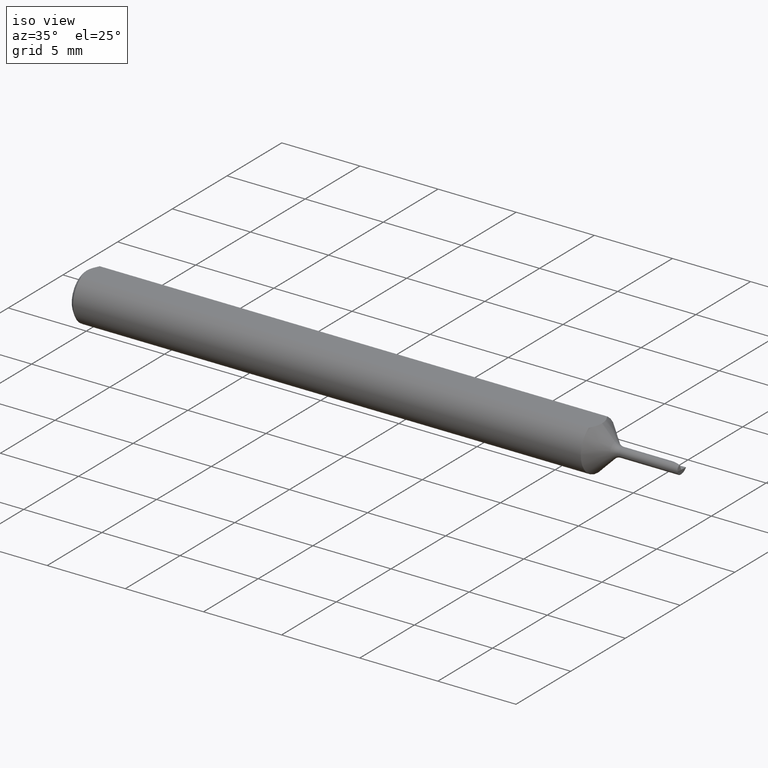
[diagram: clean part render]
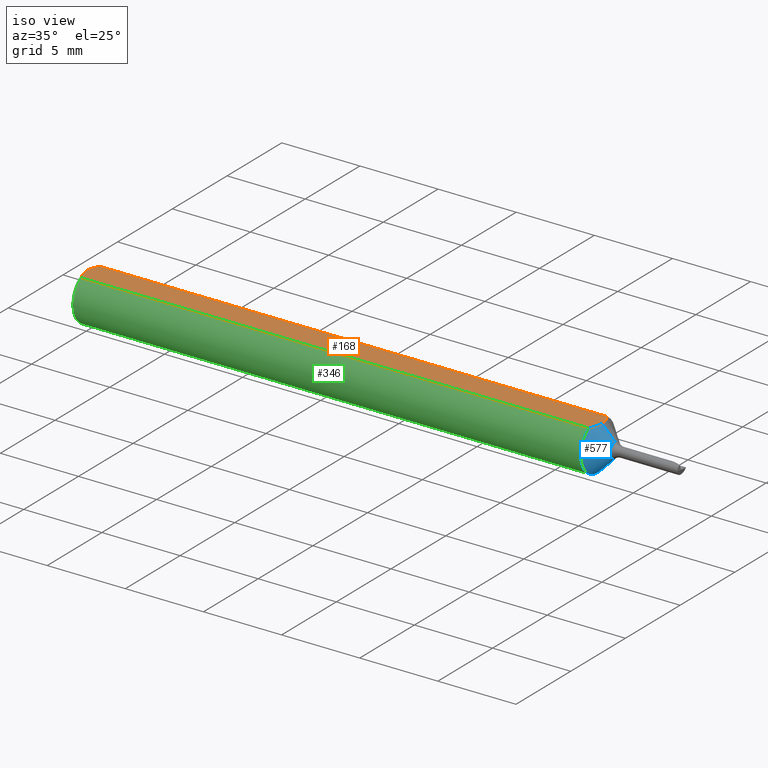
[diagram: same view with three faces highlighted in distinct colors, each labeled with its STEP entity id]
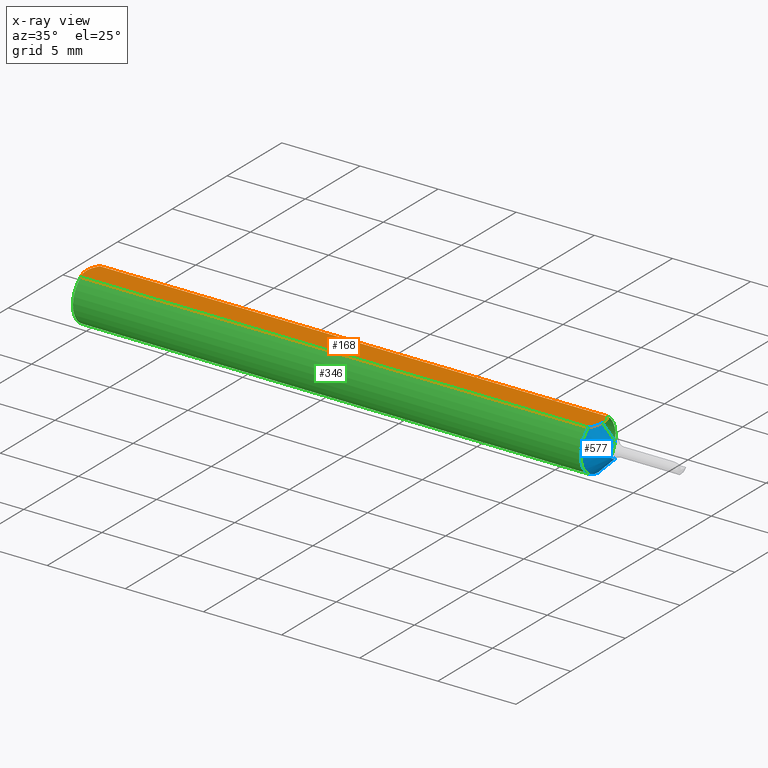
[diagram: x-ray of the same camera — body ghosted, the three highlighted faces saturated]
A machine part, iso view with three faces highlighted in distinct colors.
The next image is the same camera in x-ray (body ghosted, the three faces saturated) — at least one of them is partly hidden behind the body in this view.
Their STEP definitions:

[orange] entity #168 — the highlighted planar face has unit normal (0, 0, -1).
#11 = CARTESIAN_POINT ( 'NONE',  ( 1.294734733031429830, -0.02321402113692512537, 0.05235000000000001458 ) ) ;
#12 = CARTESIAN_POINT ( 'NONE',  ( 1.289400000000000102, -0.03386738844375218604, 0.05235000000000001458 ) ) ;
#17 = CARTESIAN_POINT ( 'NONE',  ( 1.298328875033864405, 0.01191462272770363318, 0.05235000000000001458 ) ) ;
#25 = ORIENTED_EDGE ( 'NONE', *, *, #317, .F. ) ;
#31 = DIRECTION ( 'NONE',  ( -1.000000000000000000, -0.000000000000000000, -0.000000000000000000 ) ) ;
#65 = CARTESIAN_POINT ( 'NONE',  ( 0.000000000000000000, 0.03386738844375218604, 0.05235000000000001458 ) ) ;
#68 = CARTESIAN_POINT ( 'NONE',  ( 1.299400000000000110, -1.923771709464471706E-20, 0.05235000000000001458 ) ) ;
#83 = VECTOR ( 'NONE', #280, 39.37007874015748143 ) ;
#86 = CARTESIAN_POINT ( 'NONE',  ( 0.000000000000000000, -0.03386738844375218604, 0.05235000000000001458 ) ) ;
#97 = EDGE_CURVE ( 'NONE', #275, #630, #661, .T. ) ;
#100 = ORIENTED_EDGE ( 'NONE', *, *, #97, .T. ) ;
#112 = CARTESIAN_POINT ( 'NONE',  ( 1.500000000000000444, 0.06235000000000000264, 0.05235000000000001458 ) ) ;
#118 = EDGE_CURVE ( 'NONE', #427, #275, #470, .T. ) ;
#119 = CARTESIAN_POINT ( 'NONE',  ( 0.000000000000000000, 0.000000000000000000, 0.05235000000000033377 ) ) ;
#131 = LINE ( 'NONE', #65, #83 ) ;
#147 = CARTESIAN_POINT ( 'NONE',  ( 1.299400000000000110, -1.923771709464471706E-20, 0.05235000000000001458 ) ) ;
#152 = CARTESIAN_POINT ( 'NONE',  ( 0.004679365186825696840, -0.02325953974091124130, 0.05235000000000001458 ) ) ;
#159 = CARTESIAN_POINT ( 'NONE',  ( 0.000000000000000000, 0.000000000000000000, 0.05235000000000033377 ) ) ;
#168 = ADVANCED_FACE ( 'NONE', ( #705 ), #543, .F. ) ;
#180 = CARTESIAN_POINT ( 'NONE',  ( 1.289400000000000102, 0.03386738844375218604, 0.05235000000000001458 ) ) ;
#191 = CARTESIAN_POINT ( 'NONE',  ( 0.01000000000000839627, -0.03386738844395137393, 0.05235000000000001458 ) ) ;
#199 = LINE ( 'NONE', #86, #607 ) ;
#211 = ORIENTED_EDGE ( 'NONE', *, *, #118, .T. ) ;
#231 = CARTESIAN_POINT ( 'NONE',  ( 1.298328236633304877, -0.01191784003313683775, 0.05235000000000002152 ) ) ;
#236 = CARTESIAN_POINT ( 'NONE',  ( 1.299399999999999888, 0.005921331895061767055, 0.05235000000000002152 ) ) ;
#254 = CARTESIAN_POINT ( 'NONE',  ( -1.070637973615595209E-15, -0.005965286321711172658, 0.05235000000000002152 ) ) ;
#268 = B_SPLINE_CURVE_WITH_KNOTS ( 'NONE', 3,
 ( #68, #276, #231, #11, #603, #660 ),
 .UNSPECIFIED., .F., .F.,
 ( 4, 2, 4 ),
 ( 0.003036113165764197080, 0.003485293315685289960, 0.003934473465606382406 ),
 .UNSPECIFIED. ) ;
#274 = CARTESIAN_POINT ( 'NONE',  ( 0.001063697276021360232, 0.01189177144351692694, 0.05235000000000001458 ) ) ;
#275 = VERTEX_POINT ( 'NONE', #119 ) ;
#276 = CARTESIAN_POINT ( 'NONE',  ( 1.299399999999999444, -0.005923251185922118883, 0.05235000000000002152 ) ) ;
#280 = DIRECTION ( 'NONE',  ( 1.000000000000000000, 0.000000000000000000, 0.000000000000000000 ) ) ;
#317 = EDGE_CURVE ( 'NONE', #427, #484, #131, .T. ) ;
#335 = CARTESIAN_POINT ( 'NONE',  ( 1.289400000000000102, 0.03386738844375218604, 0.05235000000000001458 ) ) ;
#348 = VERTEX_POINT ( 'NONE', #12 ) ;
#368 = EDGE_CURVE ( 'NONE', #484, #566, #594, .T. ) ;
#381 = ORIENTED_EDGE ( 'NONE', *, *, #368, .F. ) ;
#399 = CARTESIAN_POINT ( 'NONE',  ( 0.009999999999999882247, 0.03386738844375217217, 0.05235000000000001458 ) ) ;
#404 = CARTESIAN_POINT ( 'NONE',  ( 1.294736758639427832, 0.02320886323228526019, 0.05235000000000002152 ) ) ;
#419 = CARTESIAN_POINT ( 'NONE',  ( 0.001055043921644571291, -0.01186408073217194367, 0.05235000000000002152 ) ) ;
#422 = EDGE_CURVE ( 'NONE', #566, #348, #268, .T. ) ;
#427 = VERTEX_POINT ( 'NONE', #399 ) ;
#433 = AXIS2_PLACEMENT_3D ( 'NONE', #112, #537, #489 ) ;
#435 = CARTESIAN_POINT ( 'NONE',  ( 0.009999999999999882247, 0.03386738844375217217, 0.05235000000000001458 ) ) ;
#442 = CARTESIAN_POINT ( 'NONE',  ( 0.004671770759546766197, 0.02323517832780104542, 0.05235000000000002152 ) ) ;
#465 = CARTESIAN_POINT ( 'NONE',  ( 0.000000000000000000, 0.000000000000000000, 0.05235000000000033377 ) ) ;
#470 = B_SPLINE_CURVE_WITH_KNOTS ( 'NONE', 3,
 ( #435, #493, #442, #274, #586, #159 ),
 .UNSPECIFIED., .F., .F.,
 ( 4, 2, 4 ),
 ( 0.0009229516234078819371, 0.001371626545108044562, 0.001820301466808206970 ),
 .UNSPECIFIED. ) ;
#471 = CARTESIAN_POINT ( 'NONE',  ( 0.01000000000000839627, -0.03386738844395137393, 0.05235000000000001458 ) ) ;
#484 = VERTEX_POINT ( 'NONE', #335 ) ;
#489 = DIRECTION ( 'NONE',  ( -1.000000000000000000, 0.000000000000000000, -0.000000000000000000 ) ) ;
#492 = ORIENTED_EDGE ( 'NONE', *, *, #422, .F. ) ;
#493 = CARTESIAN_POINT ( 'NONE',  ( 0.007185421074056197802, 0.02868573718286559354, 0.05235000000000002152 ) ) ;
#537 = DIRECTION ( 'NONE',  ( 0.000000000000000000, 0.000000000000000000, -1.000000000000000000 ) ) ;
#543 = PLANE ( 'NONE',  #433 ) ;
#566 = VERTEX_POINT ( 'NONE', #147 ) ;
#571 = CARTESIAN_POINT ( 'NONE',  ( 0.007163450771416175755, -0.02864528976632487248, 0.05235000000000002152 ) ) ;
#586 = CARTESIAN_POINT ( 'NONE',  ( -1.099442095985316055E-15, 0.005954997531773975616, 0.05235000000000002152 ) ) ;
#594 = B_SPLINE_CURVE_WITH_KNOTS ( 'NONE', 3,
 ( #180, #608, #404, #17, #236, #613 ),
 .UNSPECIFIED., .F., .F.,
 ( 4, 2, 4 ),
 ( 0.002138043958543064428, 0.002587078562153630537, 0.003036113165764197080 ),
 .UNSPECIFIED. ) ;
#601 = EDGE_CURVE ( 'NONE', #348, #630, #199, .T. ) ;
#603 = CARTESIAN_POINT ( 'NONE',  ( 1.292246058472922288, -0.02862778320872364293, 0.05235000000000002152 ) ) ;
#607 = VECTOR ( 'NONE', #31, 39.37007874015748143 ) ;
#608 = CARTESIAN_POINT ( 'NONE',  ( 1.292245553868476504, 0.02862871218756115124, 0.05235000000000002152 ) ) ;
#613 = CARTESIAN_POINT ( 'NONE',  ( 1.299400000000000110, -1.923771709464471706E-20, 0.05235000000000001458 ) ) ;
#615 = ORIENTED_EDGE ( 'NONE', *, *, #601, .F. ) ;
#620 = EDGE_LOOP ( 'NONE', ( #25, #211, #100, #615, #492, #381 ) ) ;
#630 = VERTEX_POINT ( 'NONE', #191 ) ;
#660 = CARTESIAN_POINT ( 'NONE',  ( 1.289400000000000102, -0.03386738844375218604, 0.05235000000000001458 ) ) ;
#661 = B_SPLINE_CURVE_WITH_KNOTS ( 'NONE', 3,
 ( #465, #254, #419, #152, #571, #471 ),
 .UNSPECIFIED., .F., .F.,
 ( 4, 2, 4 ),
 ( 0.001820301466808206970, 0.002269751589840480685, 0.002719201712872753966 ),
 .UNSPECIFIED. ) ;
#705 = FACE_OUTER_BOUND ( 'NONE', #620, .T. ) ;

[blue] entity #577 — the highlighted conical surface has half-angle 45 deg.
#3 = AXIS2_PLACEMENT_3D ( 'NONE', #206, #304, #47 ) ;
#11 = CARTESIAN_POINT ( 'NONE',  ( 1.294734733031429830, -0.02321402113692512537, 0.05235000000000001458 ) ) ;
#12 = CARTESIAN_POINT ( 'NONE',  ( 1.289400000000000102, -0.03386738844375218604, 0.05235000000000001458 ) ) ;
#13 = ORIENTED_EDGE ( 'NONE', *, *, #418, .F. ) ;
#32 = EDGE_CURVE ( 'NONE', #272, #348, #439, .T. ) ;
#35 = DIRECTION ( 'NONE',  ( -1.000000000000000000, -0.000000000000000000, -0.000000000000000000 ) ) ;
#47 = DIRECTION ( 'NONE',  ( 0.000000000000000000, 0.000000000000000000, 1.000000000000000000 ) ) ;
#62 = ORIENTED_EDGE ( 'NONE', *, *, #160, .T. ) ;
#64 = AXIS2_PLACEMENT_3D ( 'NONE', #409, #35, #576 ) ;
#68 = CARTESIAN_POINT ( 'NONE',  ( 1.299400000000000110, -1.923771709464471706E-20, 0.05235000000000001458 ) ) ;
#115 = ORIENTED_EDGE ( 'NONE', *, *, #422, .T. ) ;
#147 = CARTESIAN_POINT ( 'NONE',  ( 1.299400000000000110, -1.923771709464471706E-20, 0.05235000000000001458 ) ) ;
#160 = EDGE_CURVE ( 'NONE', #255, #584, #612, .T. ) ;
#195 = CARTESIAN_POINT ( 'NONE',  ( 1.332677669529663822, 0.000000000000000000, 0.01907233047033634471 ) ) ;
#206 = CARTESIAN_POINT ( 'NONE',  ( 1.289400000000000102, 0.000000000000000000, 0.000000000000000000 ) ) ;
#231 = CARTESIAN_POINT ( 'NONE',  ( 1.298328236633304877, -0.01191784003313683775, 0.05235000000000002152 ) ) ;
#233 = CONICAL_SURFACE ( 'NONE', #64, 0.01907233047033634471, 0.7853981633974490562 ) ;
#255 = VERTEX_POINT ( 'NONE', #278 ) ;
#268 = B_SPLINE_CURVE_WITH_KNOTS ( 'NONE', 3,
 ( #68, #276, #231, #11, #603, #660 ),
 .UNSPECIFIED., .F., .F.,
 ( 4, 2, 4 ),
 ( 0.003036113165764197080, 0.003485293315685289960, 0.003934473465606382406 ),
 .UNSPECIFIED. ) ;
#272 = VERTEX_POINT ( 'NONE', #651 ) ;
#276 = CARTESIAN_POINT ( 'NONE',  ( 1.299399999999999444, -0.005923251185922118883, 0.05235000000000002152 ) ) ;
#278 = CARTESIAN_POINT ( 'NONE',  ( 1.332677669529663822, 2.335686846277793492E-18, -0.01907233047033634471 ) ) ;
#297 = DIRECTION ( 'NONE',  ( -0.7071067811865469066, 0.000000000000000000, 0.7071067811865480168 ) ) ;
#304 = DIRECTION ( 'NONE',  ( -1.000000000000000000, -0.000000000000000000, -0.000000000000000000 ) ) ;
#326 = CARTESIAN_POINT ( 'NONE',  ( 1.332677669529663822, 0.000000000000000000, 0.000000000000000000 ) ) ;
#328 = DIRECTION ( 'NONE',  ( -1.000000000000000000, -0.000000000000000000, -0.000000000000000000 ) ) ;
#348 = VERTEX_POINT ( 'NONE', #12 ) ;
#361 = ORIENTED_EDGE ( 'NONE', *, *, #540, .T. ) ;
#376 = AXIS2_PLACEMENT_3D ( 'NONE', #326, #328, #534 ) ;
#389 = CARTESIAN_POINT ( 'NONE',  ( 1.332677669529663822, 2.335686846277793492E-18, -0.01907233047033634471 ) ) ;
#409 = CARTESIAN_POINT ( 'NONE',  ( 1.332677669529663822, 0.000000000000000000, 0.000000000000000000 ) ) ;
#413 = LINE ( 'NONE', #195, #682 ) ;
#418 = EDGE_CURVE ( 'NONE', #255, #272, #495, .T. ) ;
#422 = EDGE_CURVE ( 'NONE', #566, #348, #268, .T. ) ;
#439 = CIRCLE ( 'NONE', #3, 0.06235000000000000264 ) ;
#486 = ORIENTED_EDGE ( 'NONE', *, *, #32, .F. ) ;
#495 = LINE ( 'NONE', #389, #509 ) ;
#509 = VECTOR ( 'NONE', #656, 39.37007874015748854 ) ;
#515 = CARTESIAN_POINT ( 'NONE',  ( 1.332677669529663822, 0.000000000000000000, 0.01907233047033634471 ) ) ;
#534 = DIRECTION ( 'NONE',  ( 0.000000000000000000, 0.000000000000000000, 1.000000000000000000 ) ) ;
#540 = EDGE_CURVE ( 'NONE', #584, #566, #413, .T. ) ;
#566 = VERTEX_POINT ( 'NONE', #147 ) ;
#573 = FACE_OUTER_BOUND ( 'NONE', #582, .T. ) ;
#576 = DIRECTION ( 'NONE',  ( 0.000000000000000000, 0.000000000000000000, 1.000000000000000000 ) ) ;
#577 = ADVANCED_FACE ( 'NONE', ( #573 ), #233, .T. ) ;
#582 = EDGE_LOOP ( 'NONE', ( #13, #62, #361, #115, #486 ) ) ;
#584 = VERTEX_POINT ( 'NONE', #515 ) ;
#603 = CARTESIAN_POINT ( 'NONE',  ( 1.292246058472922288, -0.02862778320872364293, 0.05235000000000002152 ) ) ;
#612 = CIRCLE ( 'NONE', #376, 0.01907233047033634471 ) ;
#651 = CARTESIAN_POINT ( 'NONE',  ( 1.289400000000000102, 7.635672792683746671E-18, -0.06235000000000000264 ) ) ;
#656 = DIRECTION ( 'NONE',  ( -0.7071067811865469066, 8.659560562354939021E-17, -0.7071067811865480168 ) ) ;
#660 = CARTESIAN_POINT ( 'NONE',  ( 1.289400000000000102, -0.03386738844375218604, 0.05235000000000001458 ) ) ;
#682 = VECTOR ( 'NONE', #297, 39.37007874015748854 ) ;

[green] entity #346 — the highlighted cylindrical surface (edge-blend (fillet) strip) has radius 1.5837 mm, axis along (-1, -0, -0).
#3 = AXIS2_PLACEMENT_3D ( 'NONE', #206, #304, #47 ) ;
#12 = CARTESIAN_POINT ( 'NONE',  ( 1.289400000000000102, -0.03386738844375218604, 0.05235000000000001458 ) ) ;
#24 = AXIS2_PLACEMENT_3D ( 'NONE', #671, #564, #239 ) ;
#31 = DIRECTION ( 'NONE',  ( -1.000000000000000000, -0.000000000000000000, -0.000000000000000000 ) ) ;
#32 = EDGE_CURVE ( 'NONE', #272, #348, #439, .T. ) ;
#47 = DIRECTION ( 'NONE',  ( 0.000000000000000000, 0.000000000000000000, 1.000000000000000000 ) ) ;
#53 = CARTESIAN_POINT ( 'NONE',  ( 0.009999999999999887451, 0.000000000000000000, 0.000000000000000000 ) ) ;
#65 = CARTESIAN_POINT ( 'NONE',  ( 0.000000000000000000, 0.03386738844375218604, 0.05235000000000001458 ) ) ;
#83 = VECTOR ( 'NONE', #280, 39.37007874015748143 ) ;
#86 = CARTESIAN_POINT ( 'NONE',  ( 0.000000000000000000, -0.03386738844375218604, 0.05235000000000001458 ) ) ;
#108 = ORIENTED_EDGE ( 'NONE', *, *, #438, .T. ) ;
#123 = FACE_OUTER_BOUND ( 'NONE', #704, .T. ) ;
#131 = LINE ( 'NONE', #65, #83 ) ;
#143 = CIRCLE ( 'NONE', #24, 0.06235000000000000264 ) ;
#170 = EDGE_CURVE ( 'NONE', #630, #293, #401, .T. ) ;
#191 = CARTESIAN_POINT ( 'NONE',  ( 0.01000000000000839627, -0.03386738844395137393, 0.05235000000000001458 ) ) ;
#199 = LINE ( 'NONE', #86, #607 ) ;
#206 = CARTESIAN_POINT ( 'NONE',  ( 1.289400000000000102, 0.000000000000000000, 0.000000000000000000 ) ) ;
#217 = ORIENTED_EDGE ( 'NONE', *, *, #601, .T. ) ;
#222 = DIRECTION ( 'NONE',  ( 1.000000000000000000, 0.000000000000000000, 0.000000000000000000 ) ) ;
#232 = CARTESIAN_POINT ( 'NONE',  ( 1.289400000000000102, 0.000000000000000000, 0.000000000000000000 ) ) ;
#239 = DIRECTION ( 'NONE',  ( 0.000000000000000000, 0.000000000000000000, -1.000000000000000000 ) ) ;
#240 = AXIS2_PLACEMENT_3D ( 'NONE', #232, #347, #662 ) ;
#265 = DIRECTION ( 'NONE',  ( 0.000000000000000000, 0.000000000000000000, -1.000000000000000000 ) ) ;
#267 = ORIENTED_EDGE ( 'NONE', *, *, #32, .T. ) ;
#272 = VERTEX_POINT ( 'NONE', #651 ) ;
#280 = DIRECTION ( 'NONE',  ( 1.000000000000000000, 0.000000000000000000, 0.000000000000000000 ) ) ;
#284 = CARTESIAN_POINT ( 'NONE',  ( 0.000000000000000000, 0.000000000000000000, 0.000000000000000000 ) ) ;
#293 = VERTEX_POINT ( 'NONE', #501 ) ;
#304 = DIRECTION ( 'NONE',  ( -1.000000000000000000, -0.000000000000000000, -0.000000000000000000 ) ) ;
#313 = AXIS2_PLACEMENT_3D ( 'NONE', #53, #222, #265 ) ;
#317 = EDGE_CURVE ( 'NONE', #427, #484, #131, .T. ) ;
#331 = CIRCLE ( 'NONE', #240, 0.06235000000000000264 ) ;
#335 = CARTESIAN_POINT ( 'NONE',  ( 1.289400000000000102, 0.03386738844375218604, 0.05235000000000001458 ) ) ;
#346 = ADVANCED_FACE ( 'NONE', ( #123 ), #553, .T. ) ;
#347 = DIRECTION ( 'NONE',  ( -1.000000000000000000, -0.000000000000000000, -0.000000000000000000 ) ) ;
#348 = VERTEX_POINT ( 'NONE', #12 ) ;
#365 = EDGE_CURVE ( 'NONE', #484, #272, #331, .T. ) ;
#399 = CARTESIAN_POINT ( 'NONE',  ( 0.009999999999999882247, 0.03386738844375217217, 0.05235000000000001458 ) ) ;
#401 = CIRCLE ( 'NONE', #313, 0.06235000000000000264 ) ;
#427 = VERTEX_POINT ( 'NONE', #399 ) ;
#438 = EDGE_CURVE ( 'NONE', #293, #427, #143, .T. ) ;
#439 = CIRCLE ( 'NONE', #3, 0.06235000000000000264 ) ;
#474 = ORIENTED_EDGE ( 'NONE', *, *, #317, .T. ) ;
#476 = AXIS2_PLACEMENT_3D ( 'NONE', #284, #560, #499 ) ;
#484 = VERTEX_POINT ( 'NONE', #335 ) ;
#499 = DIRECTION ( 'NONE',  ( 0.000000000000000000, 0.000000000000000000, 1.000000000000000000 ) ) ;
#501 = CARTESIAN_POINT ( 'NONE',  ( 0.009999999999999887451, 0.000000000000000000, -0.06235000000000000264 ) ) ;
#553 = CYLINDRICAL_SURFACE ( 'NONE', #476, 0.06235000000000000264 ) ;
#560 = DIRECTION ( 'NONE',  ( -1.000000000000000000, -0.000000000000000000, -0.000000000000000000 ) ) ;
#564 = DIRECTION ( 'NONE',  ( 1.000000000000000000, 0.000000000000000000, 0.000000000000000000 ) ) ;
#601 = EDGE_CURVE ( 'NONE', #348, #630, #199, .T. ) ;
#607 = VECTOR ( 'NONE', #31, 39.37007874015748143 ) ;
#630 = VERTEX_POINT ( 'NONE', #191 ) ;
#651 = CARTESIAN_POINT ( 'NONE',  ( 1.289400000000000102, 7.635672792683746671E-18, -0.06235000000000000264 ) ) ;
#662 = DIRECTION ( 'NONE',  ( 0.000000000000000000, 0.000000000000000000, 1.000000000000000000 ) ) ;
#671 = CARTESIAN_POINT ( 'NONE',  ( 0.009999999999999887451, 0.000000000000000000, 0.000000000000000000 ) ) ;
#674 = ORIENTED_EDGE ( 'NONE', *, *, #365, .T. ) ;
#693 = ORIENTED_EDGE ( 'NONE', *, *, #170, .T. ) ;
#704 = EDGE_LOOP ( 'NONE', ( #674, #267, #217, #693, #108, #474 ) ) ;